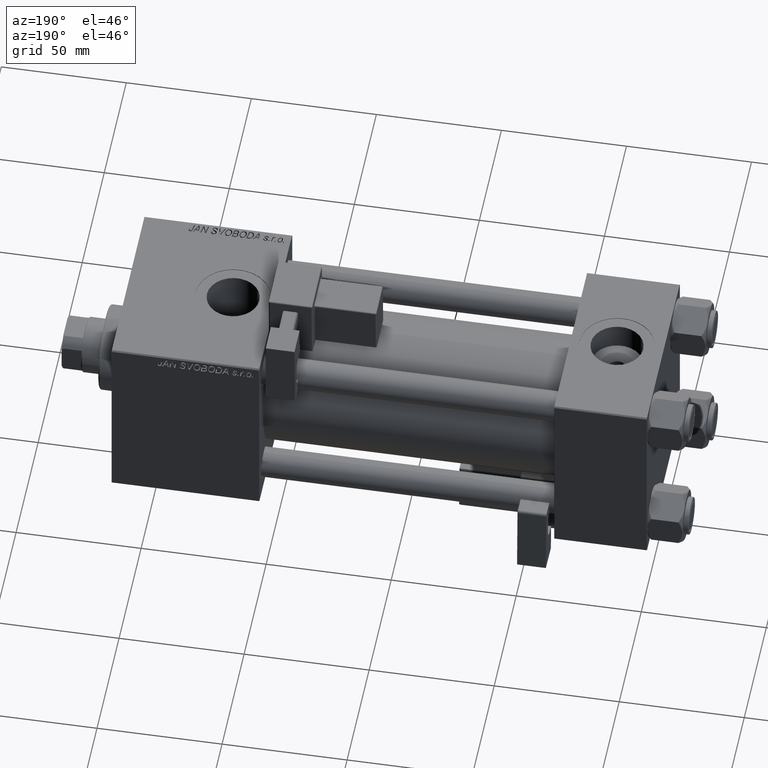
[diagram: clean part render]
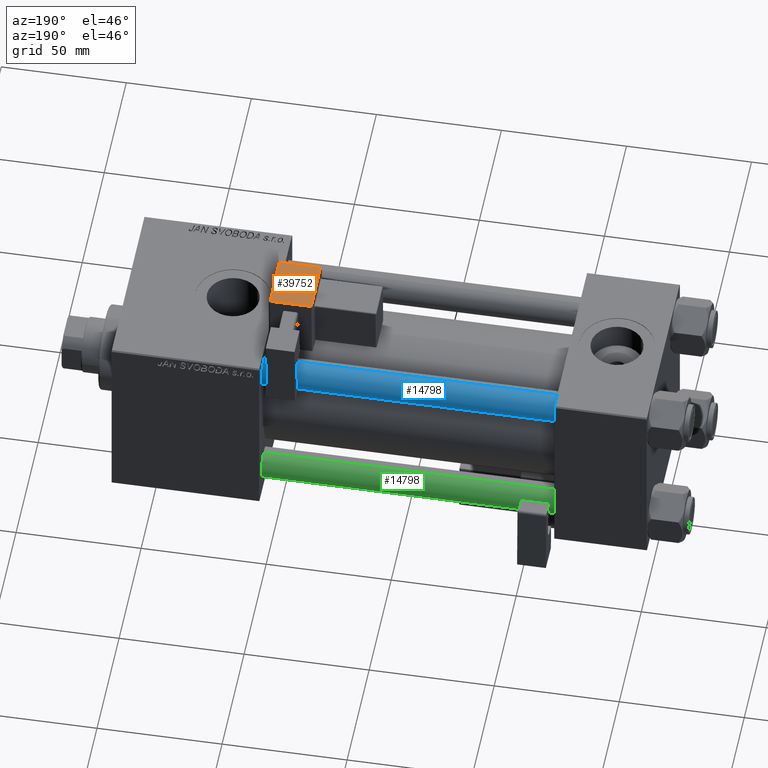
[diagram: same view with three faces highlighted in distinct colors, each labeled with its STEP entity id]
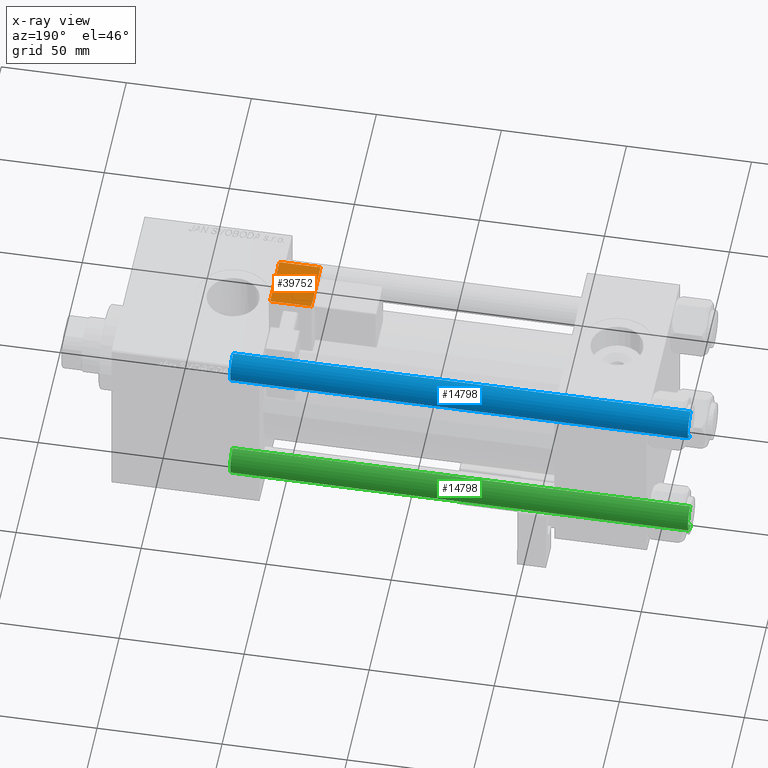
[diagram: x-ray of the same camera — body ghosted, the three highlighted faces saturated]
A machine part, auxiliary view with three faces highlighted in distinct colors.
The next image is the same camera in x-ray (body ghosted, the three faces saturated) — at least one of them is partly hidden behind the body in this view.
Their STEP definitions:

[orange] entity #39752 — the highlighted planar face has unit normal (0, -0.0353, -0.9994).
#98 = ORIENTED_EDGE ( 'NONE', *, *, #27045, .T. ) ;
#252 = DIRECTION ( 'NONE',  ( 1.000000000000000000, -0.000000000000000000, 0.000000000000000000 ) ) ;
#620 = VERTEX_POINT ( 'NONE', #48417 ) ;
#1630 = LINE ( 'NONE', #1884, #3677 ) ;
#1884 = CARTESIAN_POINT ( 'NONE',  ( 8.250000000000003553, -39.75000000000000000, -1.000000000000000222 ) ) ;
#2162 = CARTESIAN_POINT ( 'NONE',  ( 8.750000000000003553, -39.25000000000000000, -1.000000000000000222 ) ) ;
#3546 = ORIENTED_EDGE ( 'NONE', *, *, #22340, .T. ) ;
#3677 = VECTOR ( 'NONE', #21051, 1000.000000000000000 ) ;
#6137 = CARTESIAN_POINT ( 'NONE',  ( 8.250000000000003553, -39.25000000000000000, -1.000000000000000222 ) ) ;
#8762 = CARTESIAN_POINT ( 'NONE',  ( 8.750000000000003553, -18.25000000000000355, -1.000000000000000222 ) ) ;
#12706 = DIRECTION ( 'NONE',  ( -0.000000000000000000, 1.000000000000000000, 0.000000000000000000 ) ) ;
#17978 = EDGE_CURVE ( 'NONE', #620, #45856, #41435, .T. ) ;
#19639 = CARTESIAN_POINT ( 'NONE',  ( -8.250000000000003553, -39.25000000000000000, -1.000000000000000222 ) ) ;
#19930 = EDGE_CURVE ( 'NONE', #42212, #22138, #42565, .T. ) ;
#20970 = AXIS2_PLACEMENT_3D ( 'NONE', #40283, #32042, #43235 ) ;
#21051 = DIRECTION ( 'NONE',  ( -0.000000000000000000, -1.000000000000000000, -0.000000000000000000 ) ) ;
#22138 = VERTEX_POINT ( 'NONE', #19639 ) ;
#22340 = EDGE_CURVE ( 'NONE', #22138, #620, #50158, .T. ) ;
#22979 = EDGE_LOOP ( 'NONE', ( #52153, #98, #23389, #3546 ) ) ;
#23389 = ORIENTED_EDGE ( 'NONE', *, *, #19930, .T. ) ;
#24076 = FACE_OUTER_BOUND ( 'NONE', #22979, .T. ) ;
#26486 = VECTOR ( 'NONE', #29541, 1000.000000000000000 ) ;
#27045 = EDGE_CURVE ( 'NONE', #45856, #42212, #1630, .T. ) ;
#28214 = CARTESIAN_POINT ( 'NONE',  ( 8.250000000000003553, -18.25000000000000355, -1.000000000000000222 ) ) ;
#29541 = DIRECTION ( 'NONE',  ( -1.000000000000000000, -0.000000000000000000, 0.000000000000000000 ) ) ;
#31516 = VECTOR ( 'NONE', #252, 1000.000000000000000 ) ;
#32042 = DIRECTION ( 'NONE',  ( 0.000000000000000000, 0.000000000000000000, 1.000000000000000000 ) ) ;
#35226 = PLANE ( 'NONE',  #20970 ) ;
#39132 = VECTOR ( 'NONE', #12706, 1000.000000000000000 ) ;
#39752 = ADVANCED_FACE ( 'NONE', ( #24076 ), #35226, .F. ) ;
#40283 = CARTESIAN_POINT ( 'NONE',  ( 8.750000000000003553, -39.75000000000000000, -1.000000000000000222 ) ) ;
#41435 = LINE ( 'NONE', #8762, #31516 ) ;
#42212 = VERTEX_POINT ( 'NONE', #6137 ) ;
#42565 = LINE ( 'NONE', #2162, #26486 ) ;
#43235 = DIRECTION ( 'NONE',  ( 1.000000000000000000, 0.000000000000000000, -0.000000000000000000 ) ) ;
#45856 = VERTEX_POINT ( 'NONE', #28214 ) ;
#48417 = CARTESIAN_POINT ( 'NONE',  ( -8.250000000000003553, -18.25000000000000355, -1.000000000000000222 ) ) ;
#49635 = CARTESIAN_POINT ( 'NONE',  ( -8.250000000000003553, -39.75000000000000000, -1.000000000000000222 ) ) ;
#50158 = LINE ( 'NONE', #49635, #39132 ) ;
#52153 = ORIENTED_EDGE ( 'NONE', *, *, #17978, .T. ) ;

[blue] entity #14798 — the highlighted cylindrical surface (edge-blend (fillet) strip) has radius 6 mm, axis along (-1, 0, 0).
#550 = LINE ( 'NONE', #16507, #38821 ) ;
#2522 = CARTESIAN_POINT ( 'NONE',  ( 0.000000000000000000, 0.000000000000000000, 184.0000000000000000 ) ) ;
#3388 = DIRECTION ( 'NONE',  ( 0.000000000000000000, 0.000000000000000000, -1.000000000000000000 ) ) ;
#4434 = AXIS2_PLACEMENT_3D ( 'NONE', #6598, #3388, #47231 ) ;
#4580 = ORIENTED_EDGE ( 'NONE', *, *, #6519, .T. ) ;
#4600 = DIRECTION ( 'NONE',  ( -0.000000000000000000, -0.000000000000000000, 1.000000000000000000 ) ) ;
#5768 = ORIENTED_EDGE ( 'NONE', *, *, #51338, .T. ) ;
#6516 = FACE_OUTER_BOUND ( 'NONE', #7932, .T. ) ;
#6519 = EDGE_CURVE ( 'NONE', #15224, #45661, #40319, .T. ) ;
#6598 = CARTESIAN_POINT ( 'NONE',  ( 0.000000000000000000, 0.000000000000000000, 183.5000000000000000 ) ) ;
#7932 = EDGE_LOOP ( 'NONE', ( #14442, #4580, #5768, #47976 ) ) ;
#11274 = CYLINDRICAL_SURFACE ( 'NONE', #45945, 6.000000000000000888 ) ;
#11528 = DIRECTION ( 'NONE',  ( -1.000000000000000000, 0.000000000000000000, 0.000000000000000000 ) ) ;
#14442 = ORIENTED_EDGE ( 'NONE', *, *, #25366, .T. ) ;
#14798 = ADVANCED_FACE ( 'NONE', ( #6516 ), #11274, .T. ) ;
#15224 = VERTEX_POINT ( 'NONE', #31410 ) ;
#16052 = DIRECTION ( 'NONE',  ( 1.000000000000000000, 0.000000000000000000, 0.000000000000000000 ) ) ;
#16507 = CARTESIAN_POINT ( 'NONE',  ( -6.000000000000000888, 0.000000000000000000, 184.0000000000000000 ) ) ;
#25366 = EDGE_CURVE ( 'NONE', #28479, #15224, #27325, .T. ) ;
#27325 = CIRCLE ( 'NONE', #4434, 6.000000000000000888 ) ;
#27978 = CARTESIAN_POINT ( 'NONE',  ( -6.000000000000000888, 0.000000000000000000, 183.5000000000000000 ) ) ;
#28479 = VERTEX_POINT ( 'NONE', #27978 ) ;
#28976 = DIRECTION ( 'NONE',  ( -0.000000000000000000, -0.000000000000000000, -1.000000000000000000 ) ) ;
#31186 = DIRECTION ( 'NONE',  ( -0.000000000000000000, -0.000000000000000000, -1.000000000000000000 ) ) ;
#31410 = CARTESIAN_POINT ( 'NONE',  ( 6.000000000000000888, 7.347880794884120722E-16, 183.5000000000000000 ) ) ;
#32084 = CARTESIAN_POINT ( 'NONE',  ( 6.000000000000000888, 7.347880794884120722E-16, 184.0000000000000000 ) ) ;
#32492 = CARTESIAN_POINT ( 'NONE',  ( 0.000000000000000000, 0.000000000000000000, 0.5000000000000004441 ) ) ;
#35263 = AXIS2_PLACEMENT_3D ( 'NONE', #32492, #4600, #16052 ) ;
#35534 = DIRECTION ( 'NONE',  ( -0.000000000000000000, -0.000000000000000000, -1.000000000000000000 ) ) ;
#36276 = VERTEX_POINT ( 'NONE', #48974 ) ;
#38821 = VECTOR ( 'NONE', #28976, 1000.000000000000000 ) ;
#39531 = CIRCLE ( 'NONE', #35263, 6.000000000000000888 ) ;
#40319 = LINE ( 'NONE', #32084, #46457 ) ;
#41172 = EDGE_CURVE ( 'NONE', #28479, #36276, #550, .T. ) ;
#41299 = CARTESIAN_POINT ( 'NONE',  ( 6.000000000000000888, 7.347880794884120722E-16, 0.5000000000000004441 ) ) ;
#45661 = VERTEX_POINT ( 'NONE', #41299 ) ;
#45945 = AXIS2_PLACEMENT_3D ( 'NONE', #2522, #31186, #11528 ) ;
#46457 = VECTOR ( 'NONE', #35534, 1000.000000000000000 ) ;
#47231 = DIRECTION ( 'NONE',  ( 1.000000000000000000, 0.000000000000000000, 0.000000000000000000 ) ) ;
#47976 = ORIENTED_EDGE ( 'NONE', *, *, #41172, .F. ) ;
#48974 = CARTESIAN_POINT ( 'NONE',  ( -6.000000000000000888, 0.000000000000000000, 0.5000000000000004441 ) ) ;
#51338 = EDGE_CURVE ( 'NONE', #45661, #36276, #39531, .T. ) ;

[green] entity #14798 — the highlighted cylindrical surface (edge-blend (fillet) strip) has radius 6 mm, axis along (1, -0, 0).
#550 = LINE ( 'NONE', #16507, #38821 ) ;
#2522 = CARTESIAN_POINT ( 'NONE',  ( 0.000000000000000000, 0.000000000000000000, 184.0000000000000000 ) ) ;
#3388 = DIRECTION ( 'NONE',  ( 0.000000000000000000, 0.000000000000000000, -1.000000000000000000 ) ) ;
#4434 = AXIS2_PLACEMENT_3D ( 'NONE', #6598, #3388, #47231 ) ;
#4580 = ORIENTED_EDGE ( 'NONE', *, *, #6519, .T. ) ;
#4600 = DIRECTION ( 'NONE',  ( -0.000000000000000000, -0.000000000000000000, 1.000000000000000000 ) ) ;
#5768 = ORIENTED_EDGE ( 'NONE', *, *, #51338, .T. ) ;
#6516 = FACE_OUTER_BOUND ( 'NONE', #7932, .T. ) ;
#6519 = EDGE_CURVE ( 'NONE', #15224, #45661, #40319, .T. ) ;
#6598 = CARTESIAN_POINT ( 'NONE',  ( 0.000000000000000000, 0.000000000000000000, 183.5000000000000000 ) ) ;
#7932 = EDGE_LOOP ( 'NONE', ( #14442, #4580, #5768, #47976 ) ) ;
#11274 = CYLINDRICAL_SURFACE ( 'NONE', #45945, 6.000000000000000888 ) ;
#11528 = DIRECTION ( 'NONE',  ( -1.000000000000000000, 0.000000000000000000, 0.000000000000000000 ) ) ;
#14442 = ORIENTED_EDGE ( 'NONE', *, *, #25366, .T. ) ;
#14798 = ADVANCED_FACE ( 'NONE', ( #6516 ), #11274, .T. ) ;
#15224 = VERTEX_POINT ( 'NONE', #31410 ) ;
#16052 = DIRECTION ( 'NONE',  ( 1.000000000000000000, 0.000000000000000000, 0.000000000000000000 ) ) ;
#16507 = CARTESIAN_POINT ( 'NONE',  ( -6.000000000000000888, 0.000000000000000000, 184.0000000000000000 ) ) ;
#25366 = EDGE_CURVE ( 'NONE', #28479, #15224, #27325, .T. ) ;
#27325 = CIRCLE ( 'NONE', #4434, 6.000000000000000888 ) ;
#27978 = CARTESIAN_POINT ( 'NONE',  ( -6.000000000000000888, 0.000000000000000000, 183.5000000000000000 ) ) ;
#28479 = VERTEX_POINT ( 'NONE', #27978 ) ;
#28976 = DIRECTION ( 'NONE',  ( -0.000000000000000000, -0.000000000000000000, -1.000000000000000000 ) ) ;
#31186 = DIRECTION ( 'NONE',  ( -0.000000000000000000, -0.000000000000000000, -1.000000000000000000 ) ) ;
#31410 = CARTESIAN_POINT ( 'NONE',  ( 6.000000000000000888, 7.347880794884120722E-16, 183.5000000000000000 ) ) ;
#32084 = CARTESIAN_POINT ( 'NONE',  ( 6.000000000000000888, 7.347880794884120722E-16, 184.0000000000000000 ) ) ;
#32492 = CARTESIAN_POINT ( 'NONE',  ( 0.000000000000000000, 0.000000000000000000, 0.5000000000000004441 ) ) ;
#35263 = AXIS2_PLACEMENT_3D ( 'NONE', #32492, #4600, #16052 ) ;
#35534 = DIRECTION ( 'NONE',  ( -0.000000000000000000, -0.000000000000000000, -1.000000000000000000 ) ) ;
#36276 = VERTEX_POINT ( 'NONE', #48974 ) ;
#38821 = VECTOR ( 'NONE', #28976, 1000.000000000000000 ) ;
#39531 = CIRCLE ( 'NONE', #35263, 6.000000000000000888 ) ;
#40319 = LINE ( 'NONE', #32084, #46457 ) ;
#41172 = EDGE_CURVE ( 'NONE', #28479, #36276, #550, .T. ) ;
#41299 = CARTESIAN_POINT ( 'NONE',  ( 6.000000000000000888, 7.347880794884120722E-16, 0.5000000000000004441 ) ) ;
#45661 = VERTEX_POINT ( 'NONE', #41299 ) ;
#45945 = AXIS2_PLACEMENT_3D ( 'NONE', #2522, #31186, #11528 ) ;
#46457 = VECTOR ( 'NONE', #35534, 1000.000000000000000 ) ;
#47231 = DIRECTION ( 'NONE',  ( 1.000000000000000000, 0.000000000000000000, 0.000000000000000000 ) ) ;
#47976 = ORIENTED_EDGE ( 'NONE', *, *, #41172, .F. ) ;
#48974 = CARTESIAN_POINT ( 'NONE',  ( -6.000000000000000888, 0.000000000000000000, 0.5000000000000004441 ) ) ;
#51338 = EDGE_CURVE ( 'NONE', #45661, #36276, #39531, .T. ) ;